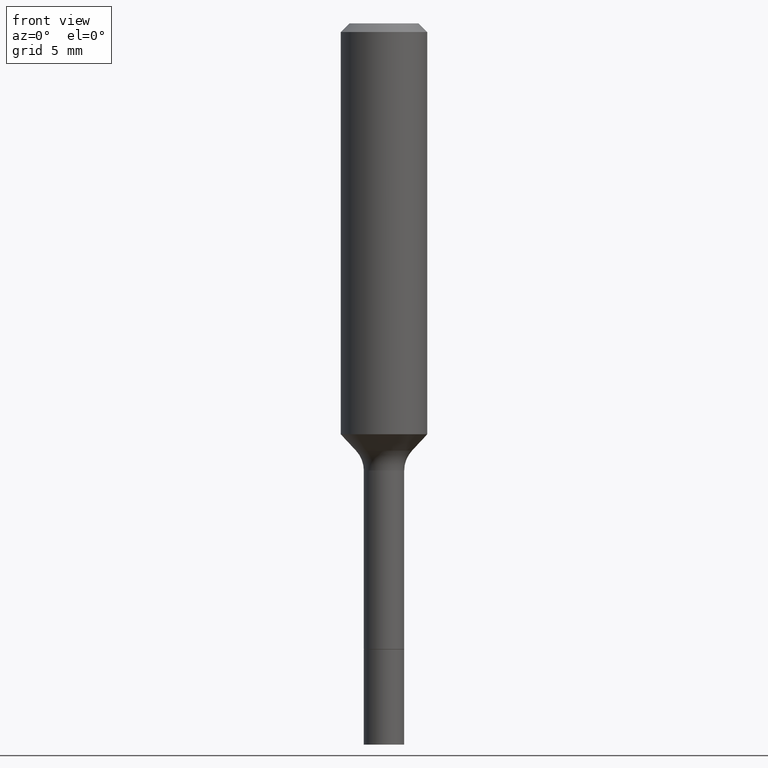
[diagram: clean part render]
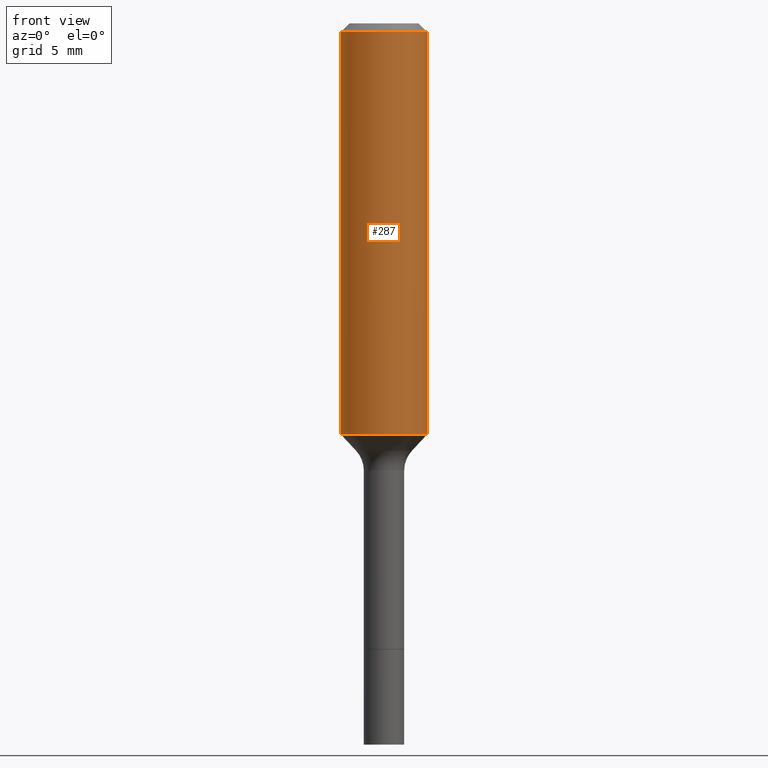
[diagram: same view with one face highlighted and labeled with its STEP entity id]
A machine part, front view. The second image highlights one B-rep face of the part: STEP entity #287.
In plain terms, the highlighted cylindrical surface (partial cylindrical patch) has radius 2.9997 mm, axis along (-0, 0, 1).
Its self-contained STEP definition (entity closure, byte-faithful):
#11 = CARTESIAN_POINT ( 'NONE',  ( -0.1180999999999999966, -1.159805774525281826E-15, -0.02362000000000014435 ) ) ;
#13 = DIRECTION ( 'NONE',  ( -2.445468806185136877E-29, 3.491481338843145188E-15, 1.000000000000000000 ) ) ;
#17 = DIRECTION ( 'NONE',  ( 1.000000000000000000, -6.982962677686269077E-15, 0.000000000000000000 ) ) ;
#21 = VERTEX_POINT ( 'NONE', #271 ) ;
#26 = CARTESIAN_POINT ( 'NONE',  ( 0.1181000000000001354, -4.740132593927196007E-15, -1.121427933219249384 ) ) ;
#37 = AXIS2_PLACEMENT_3D ( 'NONE', #241, #279, #251 ) ;
#52 = DIRECTION ( 'NONE',  ( -2.445468806185136597E-29, 3.491481338843145583E-15, 1.000000000000000000 ) ) ;
#56 = VERTEX_POINT ( 'NONE', #26 ) ;
#71 = CIRCLE ( 'NONE', #503, 0.1180999999999999966 ) ;
#77 = DIRECTION ( 'NONE',  ( -2.445468806185136597E-29, 3.491481338843145583E-15, 1.000000000000000000 ) ) ;
#89 = ORIENTED_EDGE ( 'NONE', *, *, #176, .F. ) ;
#138 = LINE ( 'NONE', #257, #264 ) ;
#141 = ORIENTED_EDGE ( 'NONE', *, *, #369, .F. ) ;
#174 = CARTESIAN_POINT ( 'NONE',  ( 2.742417029072343247E-29, -3.915444701692446956E-15, -1.121427933219249384 ) ) ;
#176 = EDGE_CURVE ( 'NONE', #300, #21, #71, .T. ) ;
#210 = FACE_OUTER_BOUND ( 'NONE', #466, .T. ) ;
#238 = CIRCLE ( 'NONE', #313, 0.1181000000000001354 ) ;
#241 = CARTESIAN_POINT ( 'NONE',  ( 0.000000000000000000, 0.000000000000000000, 0.000000000000000000 ) ) ;
#251 = DIRECTION ( 'NONE',  ( 1.000000000000000000, -6.982962677686266711E-15, 4.876176775795936353E-29 ) ) ;
#252 = ORIENTED_EDGE ( 'NONE', *, *, #317, .T. ) ;
#257 = CARTESIAN_POINT ( 'NONE',  ( -0.1181000000000000660, 8.391509709326787887E-16, -5.809262341591047287E-30 ) ) ;
#264 = VECTOR ( 'NONE', #459, 39.37007874015748143 ) ;
#271 = CARTESIAN_POINT ( 'NONE',  ( 0.1180999999999999966, -9.071566814582237199E-16, -0.02362000000000014435 ) ) ;
#279 = DIRECTION ( 'NONE',  ( -2.445468806185136597E-29, 3.491481338843145583E-15, 1.000000000000000000 ) ) ;
#287 = ADVANCED_FACE ( 'NONE', ( #210 ), #457, .T. ) ;
#293 = ORIENTED_EDGE ( 'NONE', *, *, #306, .T. ) ;
#300 = VERTEX_POINT ( 'NONE', #11 ) ;
#306 = EDGE_CURVE ( 'NONE', #56, #21, #416, .T. ) ;
#313 = AXIS2_PLACEMENT_3D ( 'NONE', #174, #52, #17 ) ;
#317 = EDGE_CURVE ( 'NONE', #483, #56, #238, .T. ) ;
#369 = EDGE_CURVE ( 'NONE', #483, #300, #138, .T. ) ;
#372 = CARTESIAN_POINT ( 'NONE',  ( 0.1181000000000000660, -8.246878922347485584E-16, 5.758764772215003944E-30 ) ) ;
#388 = CARTESIAN_POINT ( 'NONE',  ( -0.1181000000000001354, -3.076293730759767576E-15, -1.121427933219249384 ) ) ;
#397 = DIRECTION ( 'NONE',  ( 1.000000000000000000, -6.982962677686266711E-15, 0.000000000000000000 ) ) ;
#411 = VECTOR ( 'NONE', #13, 39.37007874015748143 ) ;
#416 = LINE ( 'NONE', #372, #411 ) ;
#440 = CARTESIAN_POINT ( 'NONE',  ( 5.776197320209328408E-31, -8.246878922347560526E-17, -0.02362000000000014435 ) ) ;
#457 = CYLINDRICAL_SURFACE ( 'NONE', #37, 0.1181000000000000660 ) ;
#459 = DIRECTION ( 'NONE',  ( -2.445468806185136877E-29, 3.491481338843145188E-15, 1.000000000000000000 ) ) ;
#466 = EDGE_LOOP ( 'NONE', ( #141, #252, #293, #89 ) ) ;
#483 = VERTEX_POINT ( 'NONE', #388 ) ;
#503 = AXIS2_PLACEMENT_3D ( 'NONE', #440, #77, #397 ) ;